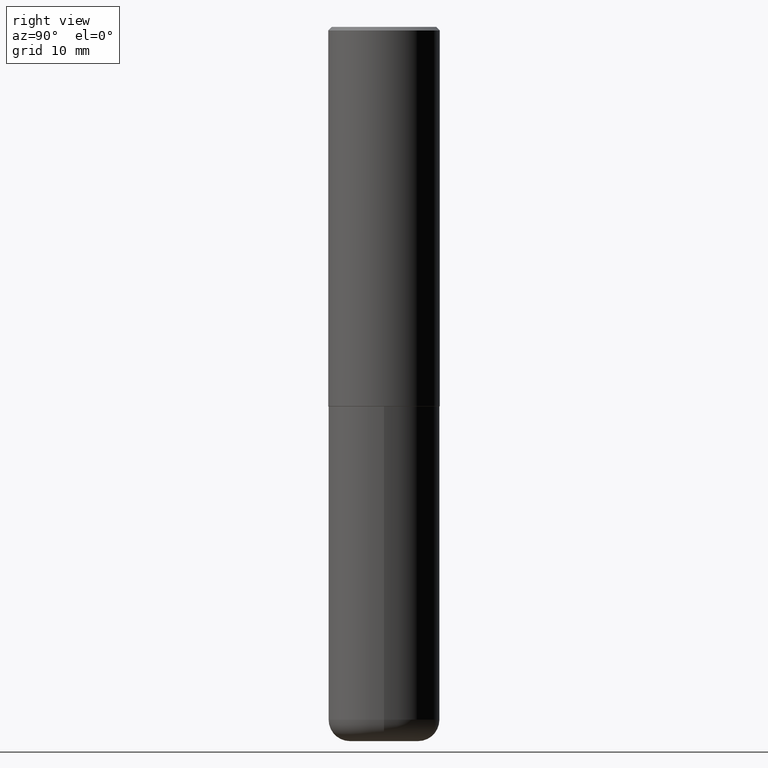
[diagram: clean part render]
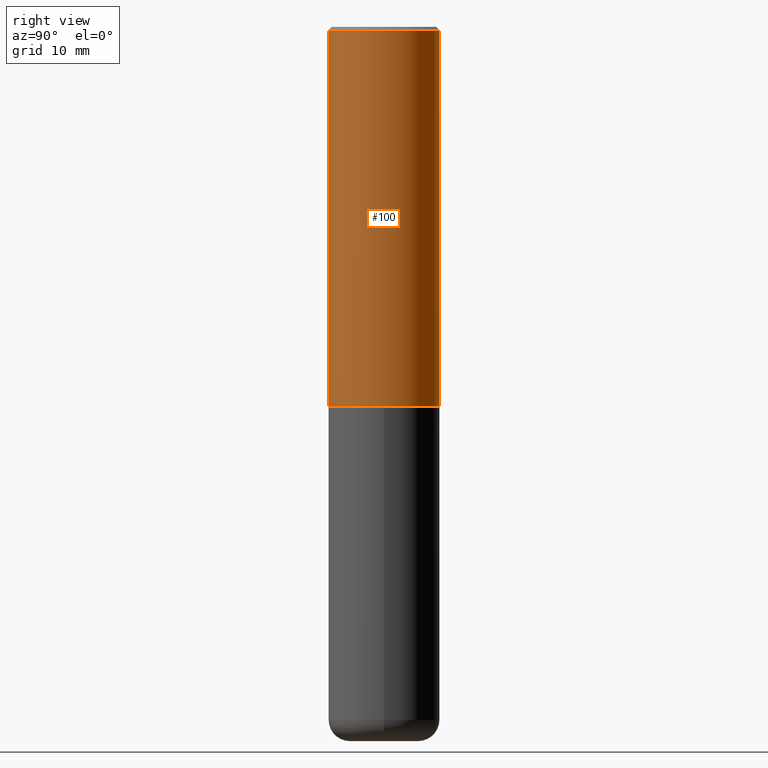
[diagram: same view with one face highlighted and labeled with its STEP entity id]
A machine part, right view. The second image highlights one B-rep face of the part: STEP entity #100.
In plain terms, the highlighted cylindrical surface (partial cylindrical patch) has radius 7.9375 mm, axis along (-0, 0, 1).
Its self-contained STEP definition (entity closure, byte-faithful):
#3 = DIRECTION ( 'NONE',  ( -2.444852431726452894E-29, 3.492364022149836358E-15, 1.000000000000000000 ) ) ;
#9 = CARTESIAN_POINT ( 'NONE',  ( 2.220446049250313475E-15, 0.3125000000000001665, -1.091363756921824478E-15 ) ) ;
#31 = ORIENTED_EDGE ( 'NONE', *, *, #271, .T. ) ;
#58 = AXIS2_PLACEMENT_3D ( 'NONE', #289, #3, #262 ) ;
#82 = VECTOR ( 'NONE', #365, 39.37007874015748143 ) ;
#100 = ADVANCED_FACE ( 'NONE', ( #168 ), #220, .T. ) ;
#106 = CARTESIAN_POINT ( 'NONE',  ( 2.220446049250340297E-15, 0.3124999999999928391, -2.124000000000000554 ) ) ;
#107 = CIRCLE ( 'NONE', #116, 0.3125000000000000000 ) ;
#116 = AXIS2_PLACEMENT_3D ( 'NONE', #253, #377, #255 ) ;
#121 = EDGE_LOOP ( 'NONE', ( #336, #31, #409, #352 ) ) ;
#122 = VECTOR ( 'NONE', #133, 39.37007874015748143 ) ;
#132 = EDGE_CURVE ( 'NONE', #226, #381, #416, .T. ) ;
#133 = DIRECTION ( 'NONE',  ( -2.444852431726452614E-29, 3.492364022149836358E-15, 1.000000000000000000 ) ) ;
#145 = CARTESIAN_POINT ( 'NONE',  ( -2.143905624303602824E-15, -0.3125000000000000555, -0.01999999999999897693 ) ) ;
#168 = FACE_OUTER_BOUND ( 'NONE', #121, .T. ) ;
#174 = EDGE_CURVE ( 'NONE', #381, #404, #107, .T. ) ;
#186 = DIRECTION ( 'NONE',  ( -6.982962677686265133E-15, -1.000000000000000000, 3.492364022149836358E-15 ) ) ;
#193 = CARTESIAN_POINT ( 'NONE',  ( -2.182175836776959136E-15, -0.3125000000000001665, 1.091363756921824478E-15 ) ) ;
#220 = CYLINDRICAL_SURFACE ( 'NONE', #395, 0.3125000000000001665 ) ;
#226 = VERTEX_POINT ( 'NONE', #264 ) ;
#233 = EDGE_CURVE ( 'NONE', #226, #240, #234, .T. ) ;
#234 = CIRCLE ( 'NONE', #58, 0.3125000000000002776 ) ;
#240 = VERTEX_POINT ( 'NONE', #106 ) ;
#243 = CARTESIAN_POINT ( 'NONE',  ( 2.182175836776958741E-15, 0.3124999999999999445, -0.02000000000000116268 ) ) ;
#253 = CARTESIAN_POINT ( 'NONE',  ( 4.889704863452922148E-31, -6.984728044299695791E-17, -0.02000000000000006981 ) ) ;
#255 = DIRECTION ( 'NONE',  ( -6.982962677686265133E-15, -1.000000000000000000, 3.496765431890256920E-15 ) ) ;
#262 = DIRECTION ( 'NONE',  ( -6.982962677686265922E-15, -1.000000000000000000, 3.496765431890253764E-15 ) ) ;
#264 = CARTESIAN_POINT ( 'NONE',  ( -2.182175836776908254E-15, -0.3125000000000077161, -2.123999999999998334 ) ) ;
#266 = LINE ( 'NONE', #9, #82 ) ;
#271 = EDGE_CURVE ( 'NONE', #240, #404, #266, .T. ) ;
#286 = DIRECTION ( 'NONE',  ( -2.444852431726452894E-29, 3.492364022149836358E-15, 1.000000000000000000 ) ) ;
#289 = CARTESIAN_POINT ( 'NONE',  ( 5.192866564986985411E-29, -7.417781183046251262E-15, -2.123999999999999666 ) ) ;
#314 = CARTESIAN_POINT ( 'NONE',  ( 0.000000000000000000, 0.000000000000000000, 0.000000000000000000 ) ) ;
#336 = ORIENTED_EDGE ( 'NONE', *, *, #233, .T. ) ;
#352 = ORIENTED_EDGE ( 'NONE', *, *, #132, .F. ) ;
#365 = DIRECTION ( 'NONE',  ( -2.444852431726452614E-29, 3.492364022149836358E-15, 1.000000000000000000 ) ) ;
#377 = DIRECTION ( 'NONE',  ( -2.444852431726452894E-29, 3.492364022149836358E-15, 1.000000000000000000 ) ) ;
#381 = VERTEX_POINT ( 'NONE', #145 ) ;
#395 = AXIS2_PLACEMENT_3D ( 'NONE', #314, #286, #186 ) ;
#404 = VERTEX_POINT ( 'NONE', #243 ) ;
#409 = ORIENTED_EDGE ( 'NONE', *, *, #174, .F. ) ;
#416 = LINE ( 'NONE', #193, #122 ) ;